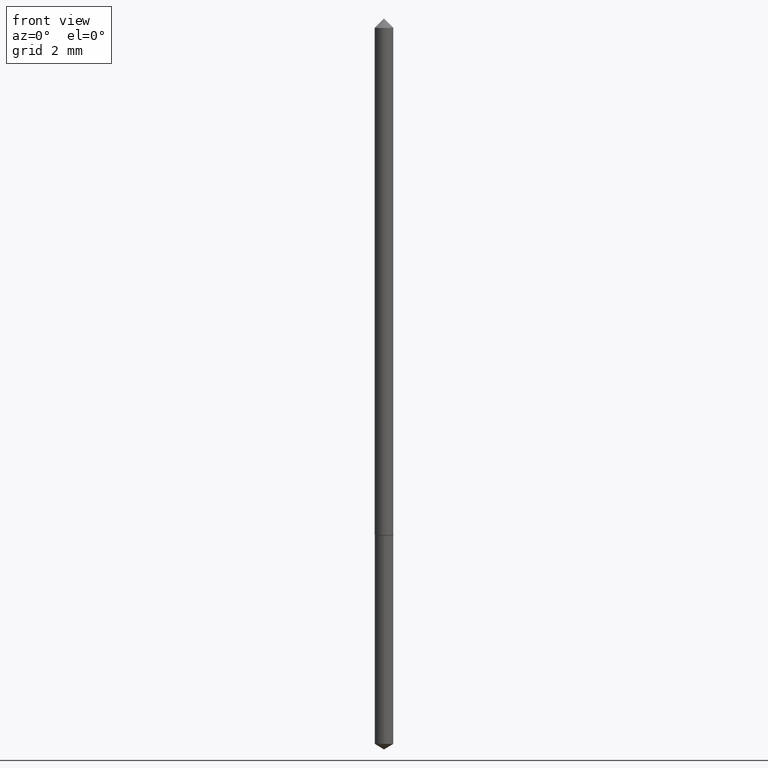
[diagram: clean part render]
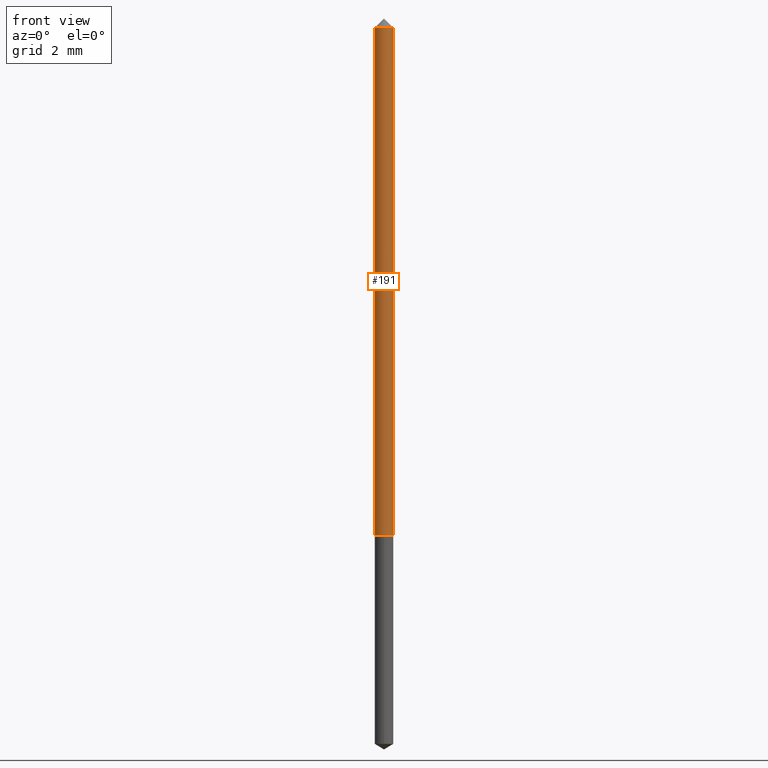
[diagram: same view with one face highlighted and labeled with its STEP entity id]
A machine part, front view. The second image highlights one B-rep face of the part: STEP entity #191.
In plain terms, the highlighted cylindrical surface (edge-blend (fillet) strip) has radius 0.3175 mm, axis along (-0, 0, 1).
Its self-contained STEP definition (entity closure, byte-faithful):
#1 = DIRECTION ( 'NONE',  ( 1.000000000000000000, -6.982962677686266711E-15, 4.876176775795936353E-29 ) ) ;
#16 = CIRCLE ( 'NONE', #335, 0.01250000000000008916 ) ;
#17 = EDGE_CURVE ( 'NONE', #323, #360, #132, .T. ) ;
#39 = EDGE_LOOP ( 'NONE', ( #127, #107, #135, #242 ) ) ;
#52 = DIRECTION ( 'NONE',  ( -2.445468806185136597E-29, 3.491481338843145583E-15, 1.000000000000000000 ) ) ;
#62 = CARTESIAN_POINT ( 'NONE',  ( -0.01250000000000000590, -1.208703910577569624E-15, -0.03125000000000020123 ) ) ;
#71 = DIRECTION ( 'NONE',  ( -2.445468806185136597E-29, 3.491481338843145583E-15, 1.000000000000000000 ) ) ;
#79 = CARTESIAN_POINT ( 'NONE',  ( 1.741173790003817192E-29, -2.485934713256319295E-15, -0.7119999999999999662 ) ) ;
#84 = VERTEX_POINT ( 'NONE', #249 ) ;
#97 = DIRECTION ( 'NONE',  ( -2.445468806185136877E-29, 3.491481338843145188E-15, 1.000000000000000000 ) ) ;
#99 = CARTESIAN_POINT ( 'NONE',  ( 0.01250000000000008916, -2.573221746727398418E-15, -0.7119999999999999662 ) ) ;
#107 = ORIENTED_EDGE ( 'NONE', *, *, #113, .T. ) ;
#109 = VECTOR ( 'NONE', #358, 39.37007874015748143 ) ;
#113 = EDGE_CURVE ( 'NONE', #84, #349, #16, .T. ) ;
#127 = ORIENTED_EDGE ( 'NONE', *, *, #288, .F. ) ;
#132 = CIRCLE ( 'NONE', #309, 0.01250000000000000590 ) ;
#135 = ORIENTED_EDGE ( 'NONE', *, *, #259, .T. ) ;
#150 = LINE ( 'NONE', #252, #109 ) ;
#162 = CYLINDRICAL_SURFACE ( 'NONE', #187, 0.01250000000000004580 ) ;
#187 = AXIS2_PLACEMENT_3D ( 'NONE', #219, #276, #1 ) ;
#191 = ADVANCED_FACE ( 'NONE', ( #331 ), #162, .T. ) ;
#219 = CARTESIAN_POINT ( 'NONE',  ( 0.000000000000000000, 0.000000000000000000, 0.000000000000000000 ) ) ;
#242 = ORIENTED_EDGE ( 'NONE', *, *, #17, .F. ) ;
#245 = CARTESIAN_POINT ( 'NONE',  ( 7.642090019328601786E-31, -1.091087918388490144E-16, -0.03125000000000020123 ) ) ;
#249 = CARTESIAN_POINT ( 'NONE',  ( -0.01250000000000008916, -2.397116871286306299E-15, -0.7119999999999999662 ) ) ;
#252 = CARTESIAN_POINT ( 'NONE',  ( 0.01250000000000004580, -8.728703347107865436E-17, 6.095220969744942512E-31 ) ) ;
#258 = LINE ( 'NONE', #346, #292 ) ;
#259 = EDGE_CURVE ( 'NONE', #349, #360, #150, .T. ) ;
#274 = DIRECTION ( 'NONE',  ( 1.000000000000000000, -6.982962677686266711E-15, 0.000000000000000000 ) ) ;
#276 = DIRECTION ( 'NONE',  ( -2.445468806185136597E-29, 3.491481338843145583E-15, 1.000000000000000000 ) ) ;
#288 = EDGE_CURVE ( 'NONE', #84, #323, #258, .T. ) ;
#292 = VECTOR ( 'NONE', #97, 39.37007874015748143 ) ;
#293 = CARTESIAN_POINT ( 'NONE',  ( 0.01250000000000000590, -1.963958253099273852E-16, -0.03125000000000020123 ) ) ;
#307 = DIRECTION ( 'NONE',  ( 1.000000000000000000, -6.982962677686283277E-15, 0.000000000000000000 ) ) ;
#309 = AXIS2_PLACEMENT_3D ( 'NONE', #245, #71, #274 ) ;
#323 = VERTEX_POINT ( 'NONE', #62 ) ;
#331 = FACE_OUTER_BOUND ( 'NONE', #39, .T. ) ;
#335 = AXIS2_PLACEMENT_3D ( 'NONE', #79, #52, #307 ) ;
#346 = CARTESIAN_POINT ( 'NONE',  ( -0.01250000000000004580, 8.881784197001284864E-17, -6.148668862818655174E-31 ) ) ;
#349 = VERTEX_POINT ( 'NONE', #99 ) ;
#358 = DIRECTION ( 'NONE',  ( -2.445468806185136877E-29, 3.491481338843145188E-15, 1.000000000000000000 ) ) ;
#360 = VERTEX_POINT ( 'NONE', #293 ) ;